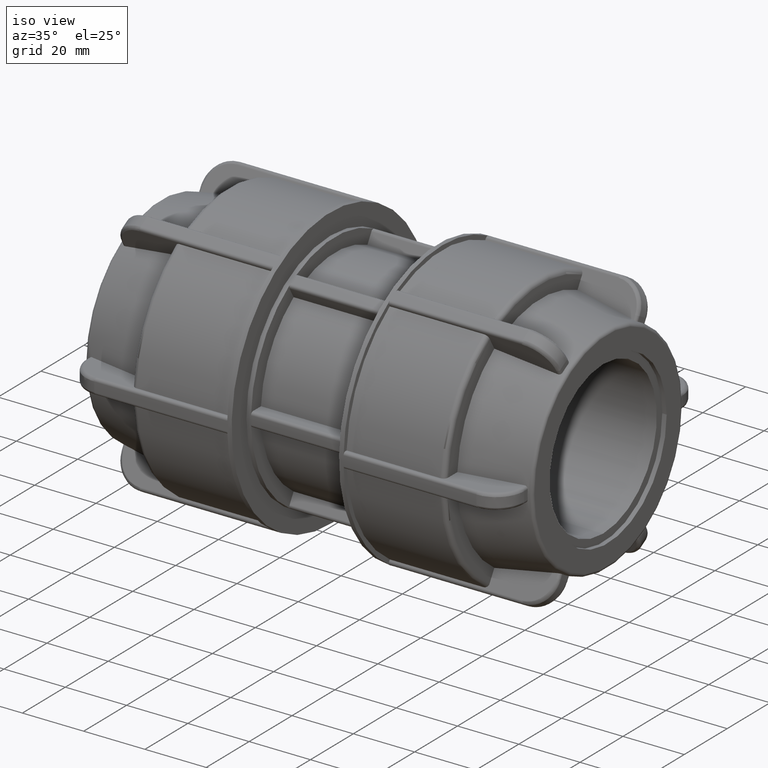
[diagram: clean part render]
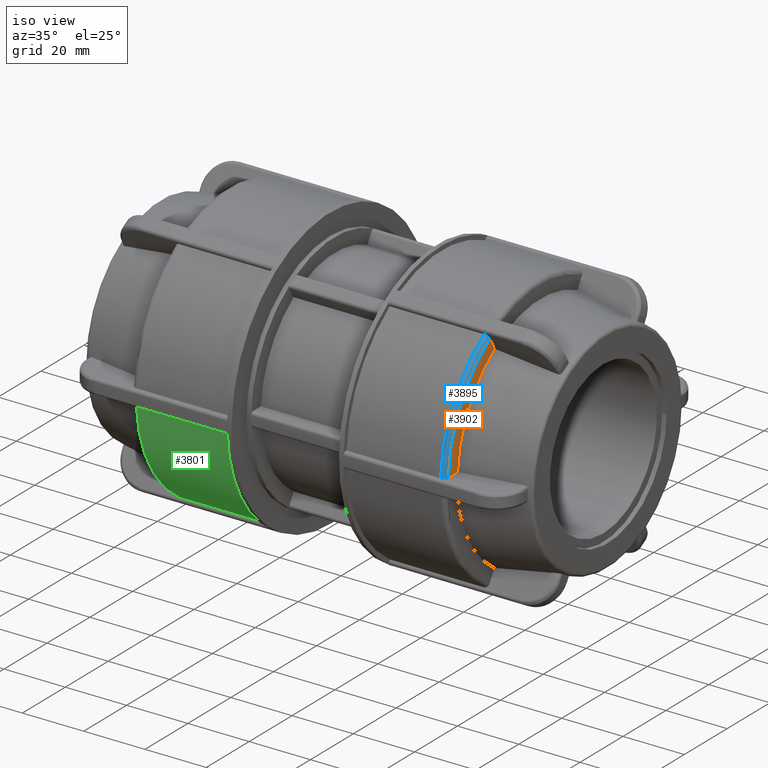
[diagram: same view with three faces highlighted in distinct colors, each labeled with its STEP entity id]
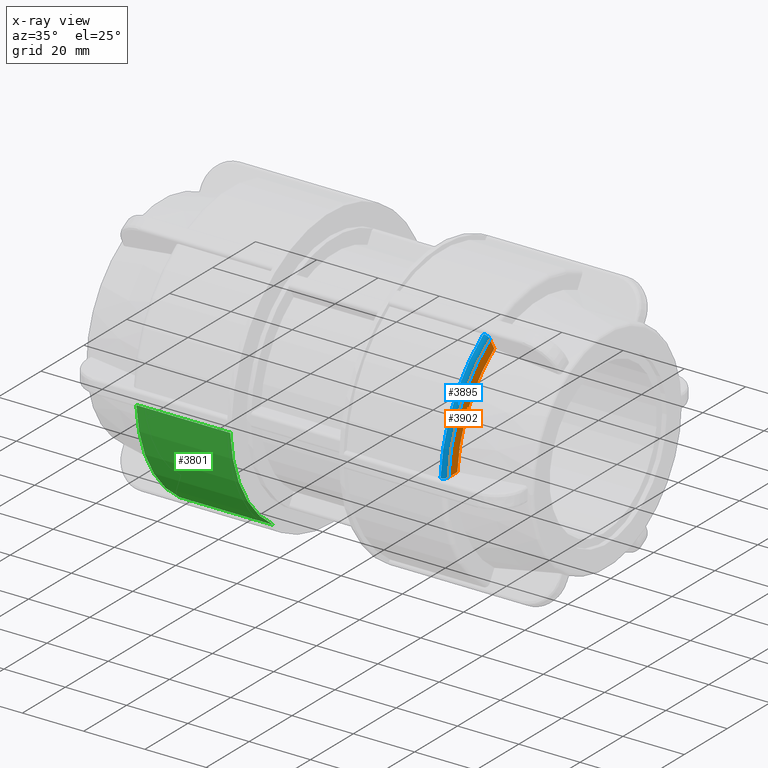
[diagram: x-ray of the same camera — body ghosted, the three highlighted faces saturated]
A machine part, iso view with three faces highlighted in distinct colors.
The next image is the same camera in x-ray (body ghosted, the three faces saturated) — at least one of them is partly hidden behind the body in this view.
Their STEP definitions:

[orange] entity #3902 — the highlighted planar face has unit normal (1, 0, 0).
#296=PLANE('',#4339);
#516=FACE_OUTER_BOUND('',#769,.T.);
#769=EDGE_LOOP('',(#3525,#3526,#3527,#3528));
#982=LINE('',#7620,#1210);
#998=LINE('',#7835,#1226);
#1210=VECTOR('',#5244,4.30647030369141);
#1226=VECTOR('',#5296,4.30647030369141);
#1462=CIRCLE('',#4321,43.16);
#1470=CIRCLE('',#4333,38.8615608775154);
#1797=VERTEX_POINT('',#7608);
#1798=VERTEX_POINT('',#7619);
#1823=VERTEX_POINT('',#7830);
#1824=VERTEX_POINT('',#7834);
#2331=EDGE_CURVE('',#1798,#1797,#982,.T.);
#2369=EDGE_CURVE('',#1824,#1823,#998,.T.);
#2405=EDGE_CURVE('',#1824,#1797,#1462,.T.);
#2418=EDGE_CURVE('',#1798,#1823,#1470,.T.);
#3525=ORIENTED_EDGE('',*,*,#2369,.T.);
#3526=ORIENTED_EDGE('',*,*,#2418,.F.);
#3527=ORIENTED_EDGE('',*,*,#2331,.T.);
#3528=ORIENTED_EDGE('',*,*,#2405,.F.);
#3902=ADVANCED_FACE('',(#516),#296,.T.);
#4321=AXIS2_PLACEMENT_3D('',#7948,#5381,#5382);
#4333=AXIS2_PLACEMENT_3D('',#8009,#5405,#5406);
#4339=AXIS2_PLACEMENT_3D('',#8017,#5418,#5419);
#5244=DIRECTION('',(1.53080849893419E-16,-0.5,0.866025403784439));
#5296=DIRECTION('',(-3.06161699786838E-16,1.,-2.77555756156289E-16));
#5381=DIRECTION('center_axis',(-1.,-3.06161699786838E-16,0.));
#5382=DIRECTION('ref_axis',(3.06161699786838E-16,-1.,1.83697019872103E-16));
#5405=DIRECTION('center_axis',(1.,3.06161699786838E-16,0.));
#5406=DIRECTION('ref_axis',(0.,0.,-1.));
#5418=DIRECTION('center_axis',(1.,3.06161699786838E-16,0.));
#5419=DIRECTION('ref_axis',(0.,0.,-1.));
#7608=CARTESIAN_POINT('',(51.1,-23.7088305895239,36.0648991690987));
#7619=CARTESIAN_POINT('',(51.1,-21.5555954376782,32.3353864854586));
#7620=CARTESIAN_POINT('',(51.1,-8.79037214443708,10.2253711716032));
#7830=CARTESIAN_POINT('',(51.1,-38.7810638564343,2.50000000000001));
#7834=CARTESIAN_POINT('',(51.1,-43.0875341601257,2.50000000000001));
#7835=CARTESIAN_POINT('',(51.1,10.3160944869544,2.5));
#7948=CARTESIAN_POINT('Origin',(51.1,1.56448628591074E-14,0.));
#8009=CARTESIAN_POINT('Origin',(51.1,1.56448628591074E-14,0.));
#8017=CARTESIAN_POINT('Origin',(51.1,38.8615608775154,0.));

[blue] entity #3895 — the highlighted toroidal blend (fillet) surface has major radius 43.16 mm and minor (blend) radius 1.46 mm.
#37=TOROIDAL_SURFACE('',#4320,43.16,1.46);
#142=B_SPLINE_CURVE_WITH_KNOTS('',3,(#7609,#7610,#7611,#7612,#7613,#7614,
#7615,#7616,#7617,#7618),.UNSPECIFIED.,.F.,.F.,(4,2,2,2,4),(-0.216397312035066,
-0.162223664148742,-0.108098313662019,-0.0540274345760987,0.),
 .UNSPECIFIED.);
#152=B_SPLINE_CURVE_WITH_KNOTS('',3,(#7837,#7838,#7839,#7840,#7841,#7842,
#7843,#7844,#7845,#7846),.UNSPECIFIED.,.F.,.F.,(4,2,2,2,4),(0.,0.054027434576096,
0.108098313662017,0.162223664148742,0.216397312035065),.UNSPECIFIED.);
#509=FACE_OUTER_BOUND('',#761,.T.);
#761=EDGE_LOOP('',(#3464,#3465,#3466,#3467));
#1456=CIRCLE('',#4309,44.62);
#1462=CIRCLE('',#4321,43.16);
#1796=VERTEX_POINT('',#7606);
#1797=VERTEX_POINT('',#7608);
#1824=VERTEX_POINT('',#7834);
#1825=VERTEX_POINT('',#7836);
#2330=EDGE_CURVE('',#1797,#1796,#142,.T.);
#2370=EDGE_CURVE('',#1825,#1824,#152,.T.);
#2397=EDGE_CURVE('',#1796,#1825,#1456,.T.);
#2405=EDGE_CURVE('',#1824,#1797,#1462,.T.);
#3464=ORIENTED_EDGE('',*,*,#2370,.T.);
#3465=ORIENTED_EDGE('',*,*,#2405,.T.);
#3466=ORIENTED_EDGE('',*,*,#2330,.T.);
#3467=ORIENTED_EDGE('',*,*,#2397,.T.);
#3895=ADVANCED_FACE('',(#509),#37,.T.);
#4309=AXIS2_PLACEMENT_3D('',#7923,#5356,#5357);
#4320=AXIS2_PLACEMENT_3D('',#7947,#5379,#5380);
#4321=AXIS2_PLACEMENT_3D('',#7948,#5381,#5382);
#5356=DIRECTION('center_axis',(1.,3.06161699786838E-16,0.));
#5357=DIRECTION('ref_axis',(3.04801256200318E-16,-1.,1.83697019872103E-16));
#5379=DIRECTION('center_axis',(1.,3.06161699786838E-16,0.));
#5380=DIRECTION('ref_axis',(0.,0.,-1.));
#5381=DIRECTION('center_axis',(-1.,-3.06161699786838E-16,0.));
#5382=DIRECTION('ref_axis',(3.06161699786838E-16,-1.,1.83697019872103E-16));
#7606=CARTESIAN_POINT('',(49.64,-24.4400180548692,37.3313530089343));
#7608=CARTESIAN_POINT('',(51.1,-23.7088305895239,36.0648991690987));
#7609=CARTESIAN_POINT('Ctrl Pts',(51.1,-23.7088305895239,36.0648991690987));
#7610=CARTESIAN_POINT('Ctrl Pts',(51.1,-23.7991200026678,36.2212850200494));
#7611=CARTESIAN_POINT('Ctrl Pts',(51.0577761184352,-23.9053905181349,36.405350952185));
#7612=CARTESIAN_POINT('Ctrl Pts',(50.9197401615621,-24.0721723097363,36.694225489016));
#7613=CARTESIAN_POINT('Ctrl Pts',(50.7995595234617,-24.1622132327529,36.8501809424412));
#7614=CARTESIAN_POINT('Ctrl Pts',(50.5446615656108,-24.2897851829445,37.0711420417936));
#7615=CARTESIAN_POINT('Ctrl Pts',(50.3648942520846,-24.3499147772171,37.1752895541123));
#7616=CARTESIAN_POINT('Ctrl Pts',(50.0320394097568,-24.4189142593222,37.2948001628143));
#7617=CARTESIAN_POINT('Ctrl Pts',(49.820091448587,-24.4400180548692,37.3313530089343));
#7618=CARTESIAN_POINT('Ctrl Pts',(49.64,-24.4400180548692,37.3313530089343));
#7834=CARTESIAN_POINT('',(51.1,-43.0875341601257,2.50000000000001));
#7836=CARTESIAN_POINT('',(49.64,-44.5499090908163,2.50000000000001));
#7837=CARTESIAN_POINT('Ctrl Pts',(49.64,-44.5499090908163,2.50000000000001));
#7838=CARTESIAN_POINT('Ctrl Pts',(49.820091448587,-44.5499090908163,2.50000000000001));
#7839=CARTESIAN_POINT('Ctrl Pts',(50.0320394097568,-44.5077014997223,2.50000000000001));
#7840=CARTESIAN_POINT('Ctrl Pts',(50.3648942520846,-44.3697025355121,2.50000000000001));
#7841=CARTESIAN_POINT('Ctrl Pts',(50.5446615656108,-44.2494433469668,2.50000000000001));
#7842=CARTESIAN_POINT('Ctrl Pts',(50.7995595234617,-43.9942994465837,2.50000000000001));
#7843=CARTESIAN_POINT('Ctrl Pts',(50.9197401615621,-43.8142176005504,2.50000000000001));
#7844=CARTESIAN_POINT('Ctrl Pts',(51.0577761184352,-43.4806540173476,2.50000000000001));
#7845=CARTESIAN_POINT('Ctrl Pts',(51.1,-43.2681129864134,2.50000000000001));
#7846=CARTESIAN_POINT('Ctrl Pts',(51.1,-43.0875341601257,2.50000000000001));
#7923=CARTESIAN_POINT('Origin',(49.64,1.51978667774187E-14,0.));
#7947=CARTESIAN_POINT('Origin',(49.64,1.51978667774187E-14,0.));
#7948=CARTESIAN_POINT('Origin',(51.1,1.56448628591074E-14,0.));

[green] entity #3801 — the highlighted cylindrical surface (partial cylindrical patch) has radius 44.62 mm, axis along (1, 0, 0).
#415=FACE_OUTER_BOUND('',#657,.T.);
#657=EDGE_LOOP('',(#2976,#2977,#2978,#2979));
#876=LINE('',#5997,#1104);
#918=LINE('',#6651,#1146);
#1104=VECTOR('',#4718,30.66);
#1146=VECTOR('',#4876,30.66);
#1370=CIRCLE('',#4141,44.62);
#1376=CIRCLE('',#4153,44.62);
#1608=VERTEX_POINT('',#5994);
#1609=VERTEX_POINT('',#5996);
#1680=VERTEX_POINT('',#6639);
#1681=VERTEX_POINT('',#6650);
#2034=EDGE_CURVE('',#1609,#1608,#876,.T.);
#2142=EDGE_CURVE('',#1681,#1680,#918,.T.);
#2167=EDGE_CURVE('',#1609,#1680,#1370,.T.);
#2175=EDGE_CURVE('',#1681,#1608,#1376,.T.);
#2976=ORIENTED_EDGE('',*,*,#2034,.T.);
#2977=ORIENTED_EDGE('',*,*,#2175,.F.);
#2978=ORIENTED_EDGE('',*,*,#2142,.T.);
#2979=ORIENTED_EDGE('',*,*,#2167,.F.);
#3649=CYLINDRICAL_SURFACE('',#4152,44.62);
#3801=ADVANCED_FACE('',(#415),#3649,.T.);
#4141=AXIS2_PLACEMENT_3D('',#6716,#4935,#4936);
#4152=AXIS2_PLACEMENT_3D('',#6740,#4958,#4959);
#4153=AXIS2_PLACEMENT_3D('',#6741,#4960,#4961);
#4718=DIRECTION('',(1.,3.06161699786838E-16,0.));
#4876=DIRECTION('',(-1.,-3.06161699786838E-16,0.));
#4935=DIRECTION('center_axis',(-1.,-3.06161699786838E-16,0.));
#4936=DIRECTION('ref_axis',(3.04801256200318E-16,-1.,1.83697019872103E-16));
#4958=DIRECTION('center_axis',(1.,3.06161699786838E-16,0.));
#4959=DIRECTION('ref_axis',(-3.3251542972004E-16,1.,0.));
#4960=DIRECTION('center_axis',(1.,3.06161699786838E-16,0.));
#4961=DIRECTION('ref_axis',(0.,0.,-1.));
#5994=CARTESIAN_POINT('',(-18.98,-24.4400180548693,-37.3313530089342));
#5996=CARTESIAN_POINT('',(-49.64,-24.4400180548693,-37.3313530089342));
#5997=CARTESIAN_POINT('',(-35.04,-24.4400180548693,-37.3313530089342));
#6639=CARTESIAN_POINT('',(-49.64,-44.5499090908164,-2.49999999999999));
#6650=CARTESIAN_POINT('',(-18.98,-44.5499090908163,-2.49999999999999));
#6651=CARTESIAN_POINT('',(-35.04,-44.5499090908163,-2.49999999999999));
#6716=CARTESIAN_POINT('Origin',(-49.64,-1.51978667774187E-14,0.));
#6740=CARTESIAN_POINT('Origin',(-35.04,-1.07279059605308E-14,0.));
#6741=CARTESIAN_POINT('Origin',(-18.98,-5.81094906195419E-15,0.));